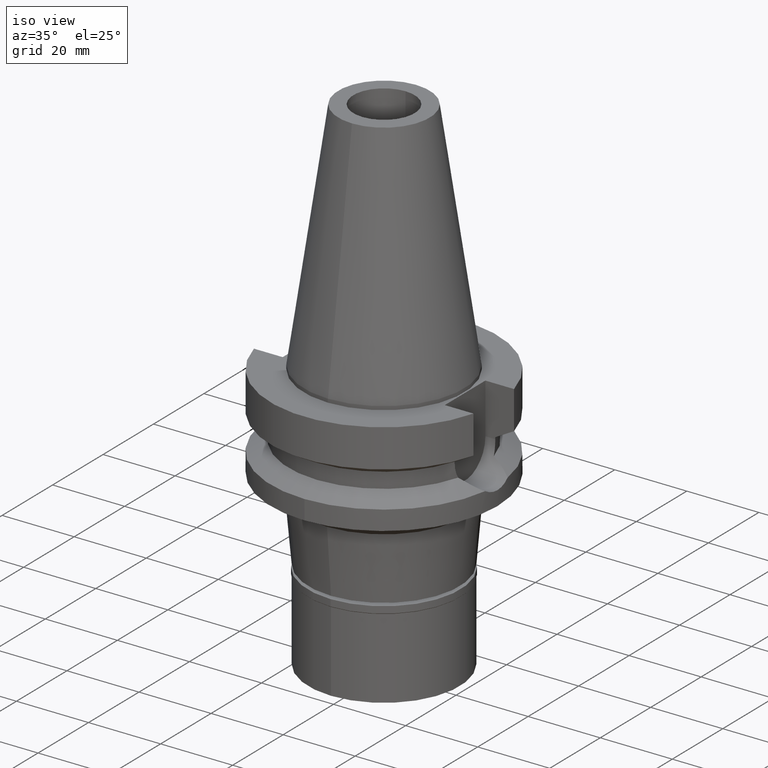
[diagram: clean part render]
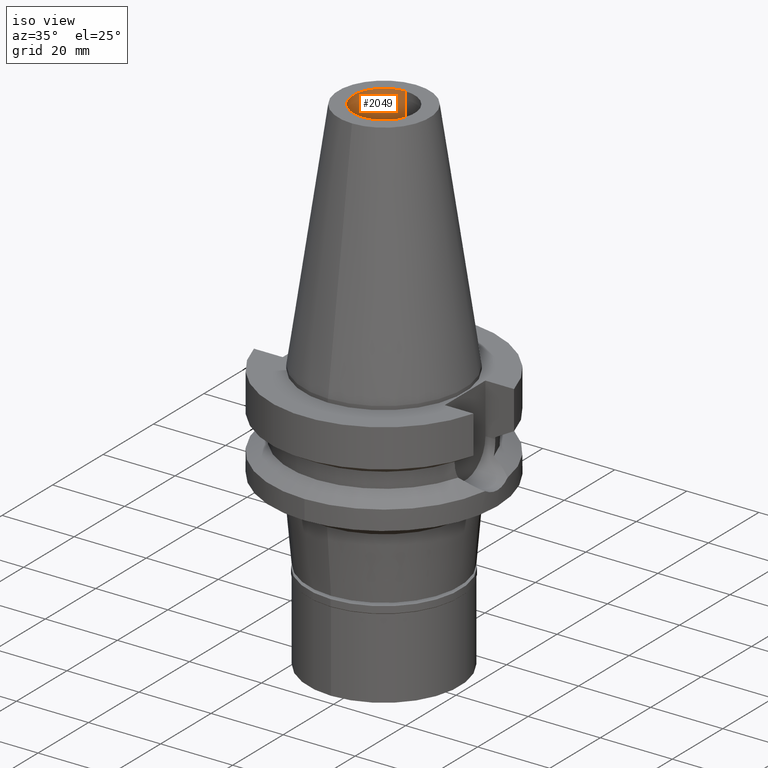
[diagram: same view with one face highlighted and labeled with its STEP entity id]
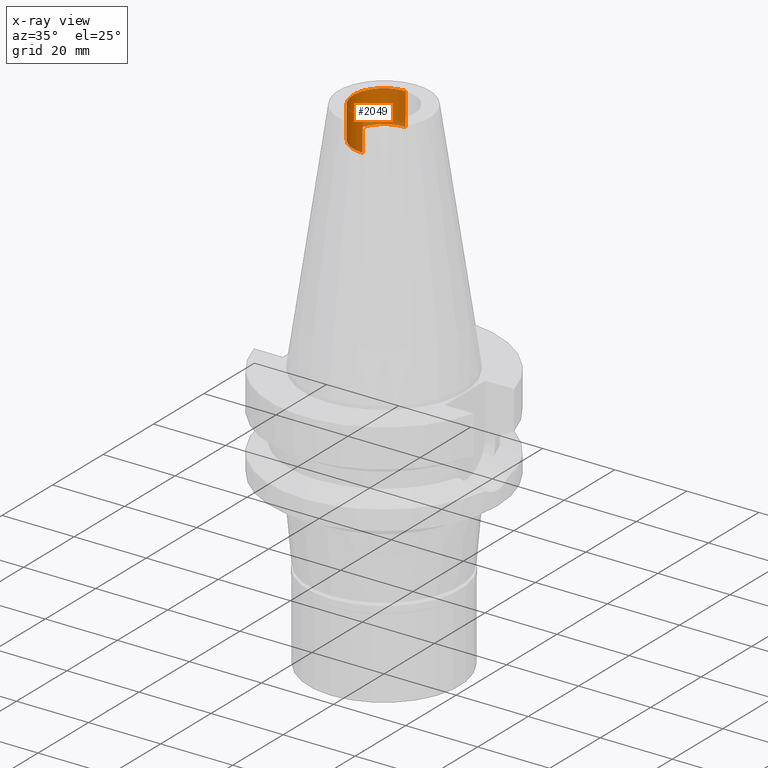
[diagram: x-ray of the same camera — body ghosted, the highlighted face saturated]
A machine part, iso view. The second image highlights one B-rep face of the part: STEP entity #2049.
The next image is the same camera in x-ray: the body ghosted, the highlighted face saturated — about 8% of this face is hidden behind the body in this view.
In plain terms, the highlighted cylindrical surface (partial cylindrical patch) has radius 8.5 mm, axis along (0, 0, -1).
Its self-contained STEP definition (entity closure, byte-faithful):
#64 = DIRECTION ( 'NONE',  ( 0.0000000000000000000, 0.0000000000000000000, -1.000000000000000000 ) ) ;
#71 = CARTESIAN_POINT ( 'NONE',  ( 0.0000000000000000000, -8.500000000000000000, 56.39999999999999858 ) ) ;
#124 = ORIENTED_EDGE ( 'NONE', *, *, #960, .T. ) ;
#154 = EDGE_CURVE ( 'NONE', #1164, #2562, #2616, .T. ) ;
#262 = DIRECTION ( 'NONE',  ( 0.0000000000000000000, -1.000000000000000000, 0.0000000000000000000 ) ) ;
#433 = AXIS2_PLACEMENT_3D ( 'NONE', #2372, #64, #262 ) ;
#461 = VERTEX_POINT ( 'NONE', #3012 ) ;
#511 = CARTESIAN_POINT ( 'NONE',  ( 0.0000000000000000000, 2.106943585592999780E-14, 72.04500000000000171 ) ) ;
#563 = DIRECTION ( 'NONE',  ( 0.0000000000000000000, 0.0000000000000000000, 1.000000000000000000 ) ) ;
#778 = CIRCLE ( 'NONE', #433, 8.500000000000000000 ) ;
#781 = AXIS2_PLACEMENT_3D ( 'NONE', #2720, #563, #2189 ) ;
#883 = CIRCLE ( 'NONE', #781, 8.500000000000000000 ) ;
#960 = EDGE_CURVE ( 'NONE', #1273, #461, #2639, .T. ) ;
#997 = EDGE_CURVE ( 'NONE', #1164, #1273, #778, .T. ) ;
#1127 = ORIENTED_EDGE ( 'NONE', *, *, #997, .T. ) ;
#1164 = VERTEX_POINT ( 'NONE', #2912 ) ;
#1254 = EDGE_CURVE ( 'NONE', #461, #2562, #883, .T. ) ;
#1273 = VERTEX_POINT ( 'NONE', #1482 ) ;
#1281 = EDGE_LOOP ( 'NONE', ( #2742, #2914, #1127, #124 ) ) ;
#1429 = CYLINDRICAL_SURFACE ( 'NONE', #2475, 8.500000000000000000 ) ;
#1482 = CARTESIAN_POINT ( 'NONE',  ( 0.0000000000000000000, 8.500000000000000000, 56.39999999999999858 ) ) ;
#1694 = DIRECTION ( 'NONE',  ( 0.0000000000000000000, -1.000000000000000000, 0.0000000000000000000 ) ) ;
#1916 = VECTOR ( 'NONE', #2876, 1000.000000000000000 ) ;
#1966 = VECTOR ( 'NONE', #2162, 1000.000000000000000 ) ;
#2049 = ADVANCED_FACE ( 'NONE', ( #3057 ), #1429, .F. ) ;
#2116 = CARTESIAN_POINT ( 'NONE',  ( 0.0000000000000000000, 8.500000000000000000, 56.39999999999999858 ) ) ;
#2162 = DIRECTION ( 'NONE',  ( 0.0000000000000000000, 0.0000000000000000000, 1.000000000000000000 ) ) ;
#2189 = DIRECTION ( 'NONE',  ( 0.0000000000000000000, 1.000000000000000000, 0.0000000000000000000 ) ) ;
#2372 = CARTESIAN_POINT ( 'NONE',  ( 0.0000000000000000000, 2.106943585592999780E-14, 56.39999999999999858 ) ) ;
#2475 = AXIS2_PLACEMENT_3D ( 'NONE', #511, #2599, #1694 ) ;
#2562 = VERTEX_POINT ( 'NONE', #2822 ) ;
#2599 = DIRECTION ( 'NONE',  ( 0.0000000000000000000, 0.0000000000000000000, -1.000000000000000000 ) ) ;
#2616 = LINE ( 'NONE', #71, #1916 ) ;
#2639 = LINE ( 'NONE', #2116, #1966 ) ;
#2720 = CARTESIAN_POINT ( 'NONE',  ( 0.0000000000000000000, 2.106943585592999780E-14, 65.40000000000000568 ) ) ;
#2742 = ORIENTED_EDGE ( 'NONE', *, *, #1254, .T. ) ;
#2822 = CARTESIAN_POINT ( 'NONE',  ( 0.0000000000000000000, -8.500000000000000000, 65.40000000000000568 ) ) ;
#2876 = DIRECTION ( 'NONE',  ( 0.0000000000000000000, 0.0000000000000000000, 1.000000000000000000 ) ) ;
#2912 = CARTESIAN_POINT ( 'NONE',  ( 0.0000000000000000000, -8.500000000000000000, 56.39999999999999858 ) ) ;
#2914 = ORIENTED_EDGE ( 'NONE', *, *, #154, .F. ) ;
#3012 = CARTESIAN_POINT ( 'NONE',  ( 0.0000000000000000000, 8.500000000000000000, 65.40000000000000568 ) ) ;
#3057 = FACE_OUTER_BOUND ( 'NONE', #1281, .T. ) ;